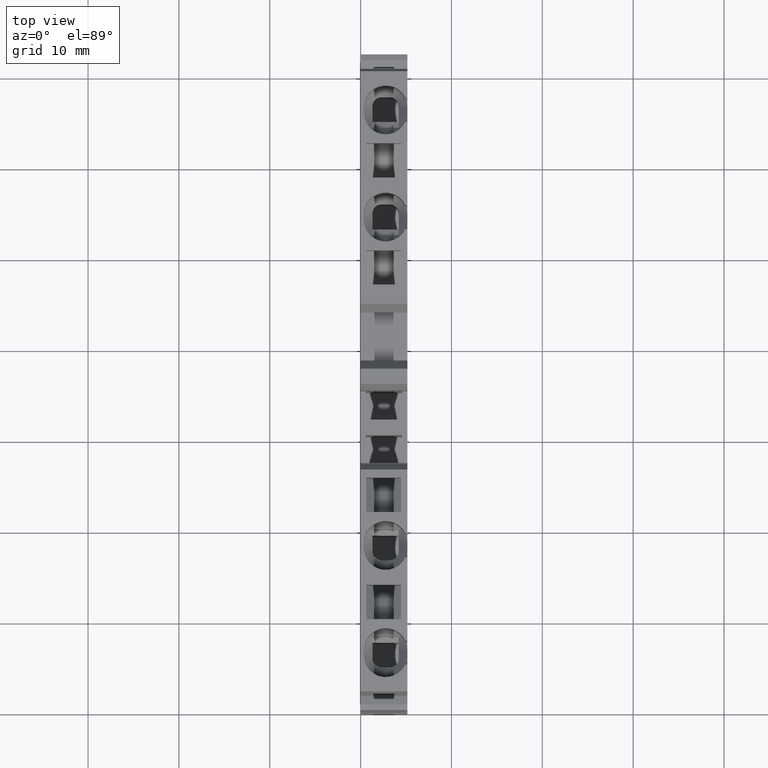
[diagram: clean part render]
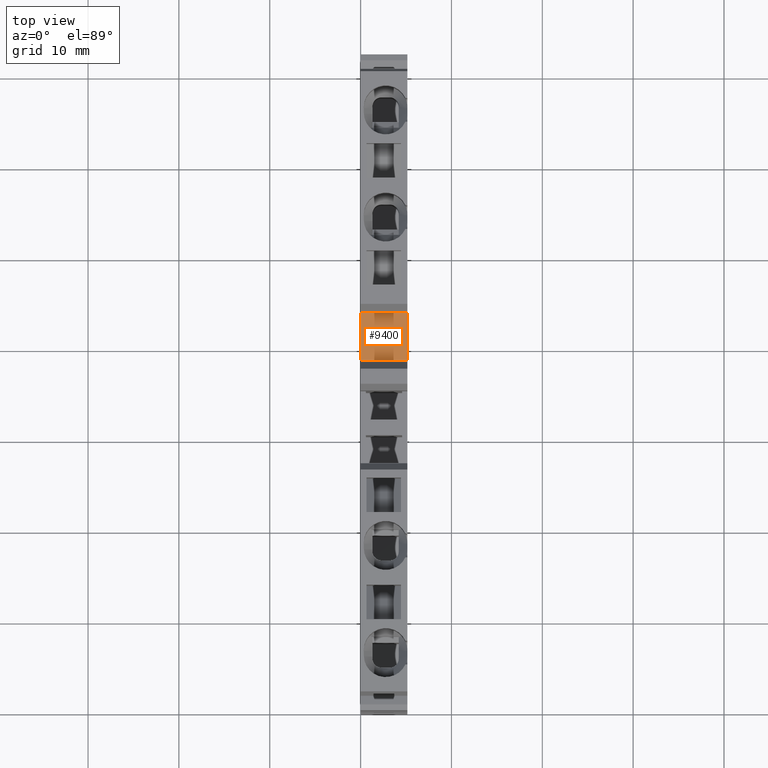
[diagram: same view with one face highlighted and labeled with its STEP entity id]
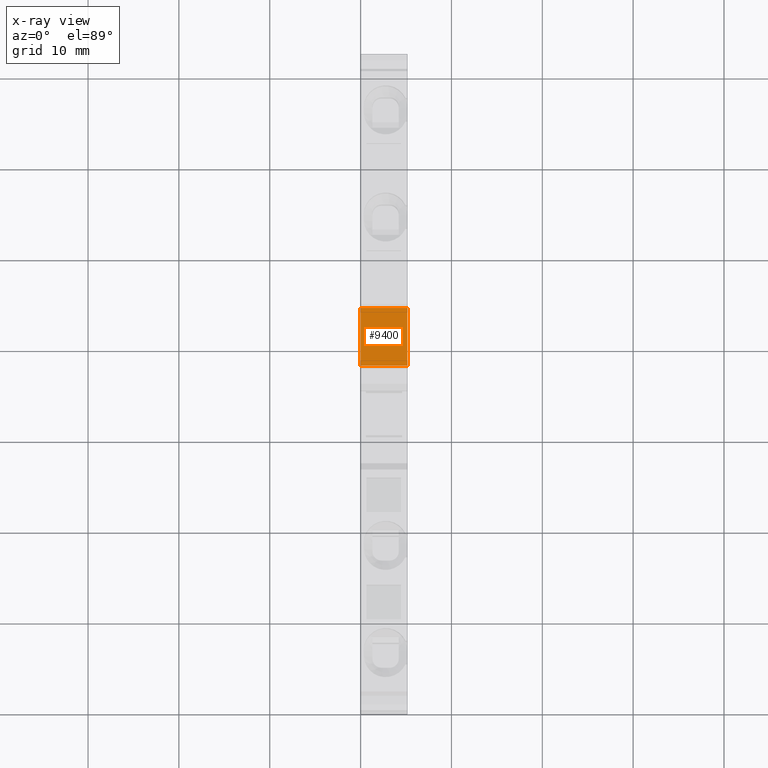
[diagram: x-ray of the same camera — body ghosted, the highlighted face saturated]
A machine part, top view. The second image highlights one B-rep face of the part: STEP entity #9400.
The next image is the same camera in x-ray: the body ghosted, the highlighted face saturated — about 0% of this face is hidden behind the body in this view.
In plain terms, the highlighted planar face has unit normal (-0, -0, -1).
Its self-contained STEP definition (entity closure, byte-faithful):
#9010=CARTESIAN_POINT('',(34.843694103415,30.3799861679747,
-6.18092279139363));
#9020=DIRECTION('',(0.12186934340509,-0.992546151641329,0.));
#9030=DIRECTION('',(-0.992546151641329,-0.12186934340509,0.));
#9040=AXIS2_PLACEMENT_3D('',#9010,#9020,#9030);
#9050=PLANE('',#9040);
#9060=CARTESIAN_POINT('',(0.,26.1017184872538,-2.8199664825479E-14));
#9070=DIRECTION('',(-0.992546151641329,-0.12186934340509,0.));
#9080=VECTOR('',#9070,1.);
#9090=LINE('',#9060,#9080);
#9100=CARTESIAN_POINT('',(40.8237846670545,31.1142489619904,
-2.8199664825479E-14));
#9110=VERTEX_POINT('',#9100);
#9120=CARTESIAN_POINT('',(34.5459302579226,30.3434253649531,
-2.8199664825479E-14));
#9130=VERTEX_POINT('',#9120);
#9140=EDGE_CURVE('',#9110,#9130,#9090,.T.);
#9150=ORIENTED_EDGE('',*,*,#9140,.F.);
#9160=CARTESIAN_POINT('',(34.5459302579226,30.3434253649531,0.));
#9170=DIRECTION('',(0.,0.,1.));
#9180=VECTOR('',#9170,1.);
#9190=LINE('',#9160,#9180);
#9200=CARTESIAN_POINT('',(34.5459302579226,30.3434253649531,
-5.15000000000003));
#9210=VERTEX_POINT('',#9200);
#9220=EDGE_CURVE('',#9210,#9130,#9190,.T.);
#9230=ORIENTED_EDGE('',*,*,#9220,.T.);
#9240=CARTESIAN_POINT('',(0.,26.1017184872538,-5.15000000000003));
#9250=DIRECTION('',(-0.992546151641329,-0.12186934340509,0.));
#9260=VECTOR('',#9250,1.);
#9270=LINE('',#9240,#9260);
#9280=CARTESIAN_POINT('',(40.8237846670545,31.1142489619904,
-5.15000000000003));
#9290=VERTEX_POINT('',#9280);
#9300=EDGE_CURVE('',#9290,#9210,#9270,.T.);
#9310=ORIENTED_EDGE('',*,*,#9300,.T.);
#9320=CARTESIAN_POINT('',(40.8237846670541,31.1142489619903,0.));
#9330=DIRECTION('',(0.,0.,1.));
#9340=VECTOR('',#9330,1.);
#9350=LINE('',#9320,#9340);
#9360=EDGE_CURVE('',#9290,#9110,#9350,.T.);
#9370=ORIENTED_EDGE('',*,*,#9360,.F.);
#9380=EDGE_LOOP('',(#9370,#9310,#9230,#9150));
#9390=FACE_OUTER_BOUND('',#9380,.T.);
#9400=ADVANCED_FACE('',(#9390),#9050,.F.);